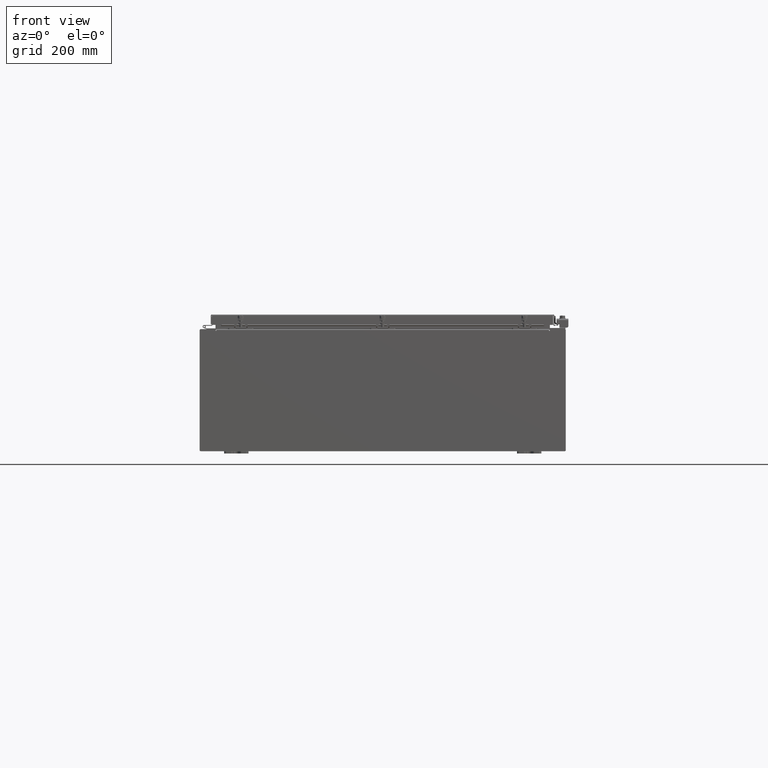
[diagram: clean part render]
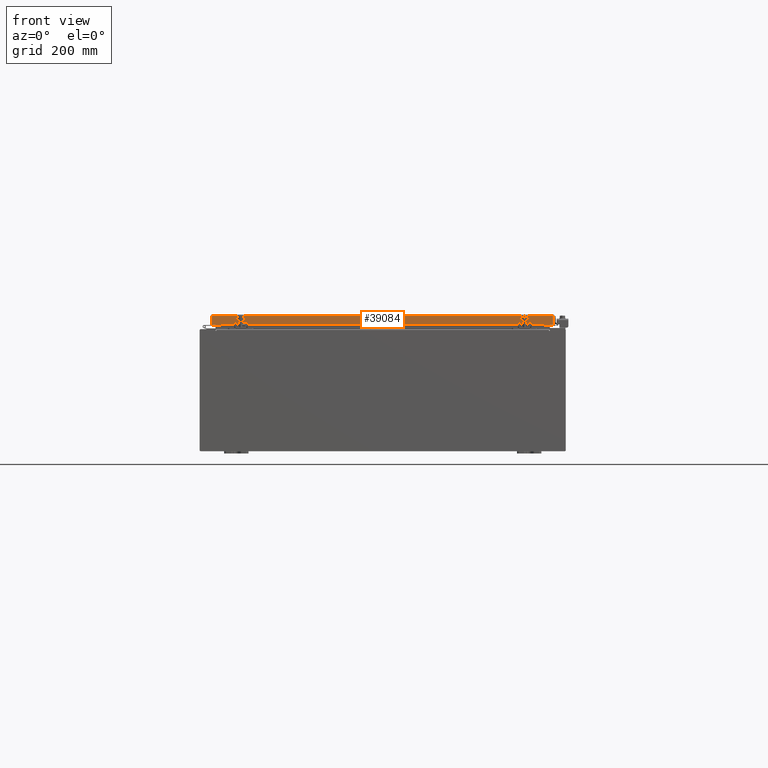
[diagram: same view with one face highlighted and labeled with its STEP entity id]
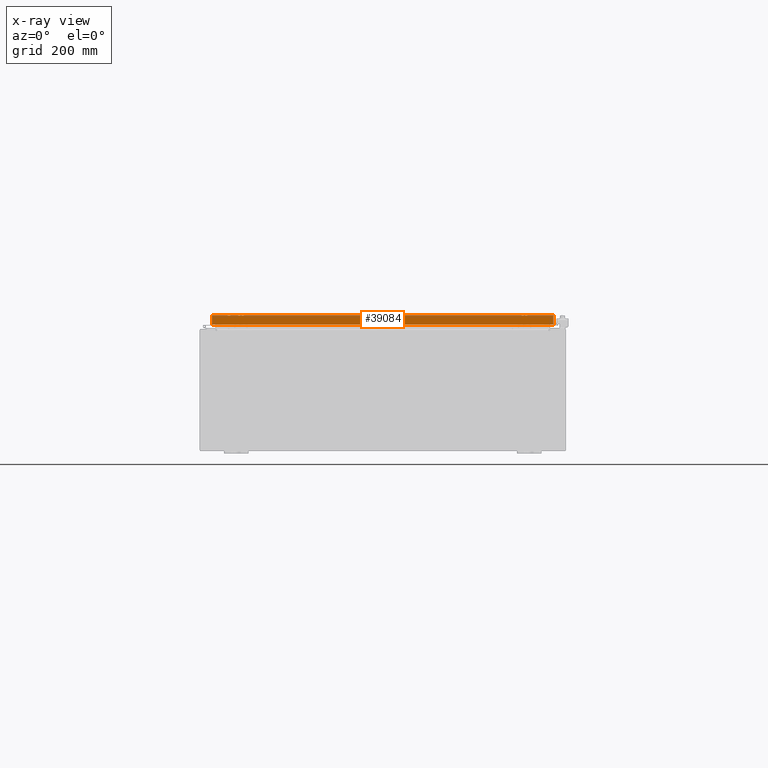
[diagram: x-ray of the same camera — body ghosted, the highlighted face saturated]
A machine part, front view. The second image highlights one B-rep face of the part: STEP entity #39084.
The next image is the same camera in x-ray: the body ghosted, the highlighted face saturated — about 0% of this face is hidden behind the body in this view.
In plain terms, the highlighted planar face has unit normal (-0, 1, -0).
Its self-contained STEP definition (entity closure, byte-faithful):
#476 = EDGE_CURVE ( 'NONE', #6163, #38441, #7977, .T. ) ;
#991 = CARTESIAN_POINT ( 'NONE',  ( 13.23915786437626400, -23.09400000000000500, -0.8500000000000040900 ) ) ;
#2006 = VERTEX_POINT ( 'NONE', #5179 ) ;
#2104 = LINE ( 'NONE', #2371, #27854 ) ;
#2371 = CARTESIAN_POINT ( 'NONE',  ( 14.07799999999999800, -23.09400000000000100, -0.08769999999999547600 ) ) ;
#3301 = VECTOR ( 'NONE', #16805, 39.37007874015748100 ) ;
#3576 = VECTOR ( 'NONE', #8968, 39.37007874015748100 ) ;
#5179 = CARTESIAN_POINT ( 'NONE',  ( 13.23915786437626000, -23.09400000000000500, -0.8500000000000040900 ) ) ;
#5907 = CARTESIAN_POINT ( 'NONE',  ( -13.98915786437626500, -23.09400000000000100, -0.08769999999999547600 ) ) ;
#6163 = VERTEX_POINT ( 'NONE', #8332 ) ;
#7954 = EDGE_CURVE ( 'NONE', #38441, #2006, #29642, .T. ) ;
#7977 = LINE ( 'NONE', #36086, #13015 ) ;
#8332 = CARTESIAN_POINT ( 'NONE',  ( 13.98915786437626500, -23.09400000000000100, -0.08769999999999549000 ) ) ;
#8417 = AXIS2_PLACEMENT_3D ( 'NONE', #33114, #37134, #12808 ) ;
#8631 = CARTESIAN_POINT ( 'NONE',  ( 14.07799999999999800, -23.09400000000000500, -0.8499999999999996400 ) ) ;
#8652 = ORIENTED_EDGE ( 'NONE', *, *, #26397, .F. ) ;
#8721 = EDGE_CURVE ( 'NONE', #23882, #6163, #2104, .T. ) ;
#8793 = DIRECTION ( 'NONE',  ( -0.0000000000000000000, -5.637761885544720300E-015, -1.000000000000000000 ) ) ;
#8968 = DIRECTION ( 'NONE',  ( 0.0000000000000000000, -5.637761885544720300E-015, -1.000000000000000000 ) ) ;
#12364 = VERTEX_POINT ( 'NONE', #14879 ) ;
#12808 = DIRECTION ( 'NONE',  ( 0.0000000000000000000, 5.637761885544720300E-015, 1.000000000000000000 ) ) ;
#13015 = VECTOR ( 'NONE', #8793, 39.37007874015748100 ) ;
#14491 = LINE ( 'NONE', #37368, #3576 ) ;
#14879 = CARTESIAN_POINT ( 'NONE',  ( -13.98915786437626500, -23.09400000000000500, -0.8499999999999963100 ) ) ;
#16805 = DIRECTION ( 'NONE',  ( -1.000000000000000000, 8.758115402030108600E-047, 1.212817869044015600E-016 ) ) ;
#21207 = ORIENTED_EDGE ( 'NONE', *, *, #8721, .F. ) ;
#21631 = ORIENTED_EDGE ( 'NONE', *, *, #7954, .F. ) ;
#23882 = VERTEX_POINT ( 'NONE', #5907 ) ;
#26397 = EDGE_CURVE ( 'NONE', #2006, #47846, #33624, .T. ) ;
#27440 = CARTESIAN_POINT ( 'NONE',  ( 14.07799999999999800, -23.09400000000000500, -0.8499999999999996400 ) ) ;
#27581 = DIRECTION ( 'NONE',  ( -1.000000000000000000, 8.758115402030108600E-047, 1.212817869044015600E-016 ) ) ;
#27854 = VECTOR ( 'NONE', #30937, 39.37007874015748100 ) ;
#29091 = PLANE ( 'NONE',  #8417 ) ;
#29642 = LINE ( 'NONE', #27440, #32873 ) ;
#30937 = DIRECTION ( 'NONE',  ( 1.000000000000000000, 6.837578356203919300E-031, -3.837486554107332000E-045 ) ) ;
#31075 = DIRECTION ( 'NONE',  ( -1.000000000000000000, 0.0000000000000000000, 0.0000000000000000000 ) ) ;
#32873 = VECTOR ( 'NONE', #27581, 39.37007874015748100 ) ;
#33114 = CARTESIAN_POINT ( 'NONE',  ( 1.579070345581732800E-029, -23.09400000000000100, 1.304592866407813600E-013 ) ) ;
#33624 = LINE ( 'NONE', #991, #43013 ) ;
#36086 = CARTESIAN_POINT ( 'NONE',  ( 13.98915786437626500, -23.09400000000000100, -0.07469999999999958600 ) ) ;
#37046 = ORIENTED_EDGE ( 'NONE', *, *, #41269, .F. ) ;
#37134 = DIRECTION ( 'NONE',  ( -6.837578356203917600E-031, 1.000000000000000000, -5.637761885544720300E-015 ) ) ;
#37368 = CARTESIAN_POINT ( 'NONE',  ( -13.98915786437626700, -23.09400000000000100, 1.304592866407813600E-013 ) ) ;
#37817 = ORIENTED_EDGE ( 'NONE', *, *, #476, .F. ) ;
#38441 = VERTEX_POINT ( 'NONE', #40328 ) ;
#39084 = ADVANCED_FACE ( 'NONE', ( #48908 ), #29091, .F. ) ;
#40328 = CARTESIAN_POINT ( 'NONE',  ( 13.98915786437626500, -23.09400000000000500, -0.8499999999999996400 ) ) ;
#41269 = EDGE_CURVE ( 'NONE', #47846, #12364, #46559, .T. ) ;
#43013 = VECTOR ( 'NONE', #31075, 39.37007874015748100 ) ;
#46044 = CARTESIAN_POINT ( 'NONE',  ( -13.23915786437626400, -23.09400000000000500, -0.8500000000000040900 ) ) ;
#46559 = LINE ( 'NONE', #8631, #3301 ) ;
#47846 = VERTEX_POINT ( 'NONE', #46044 ) ;
#48607 = EDGE_LOOP ( 'NONE', ( #21207, #50831, #37046, #8652, #21631, #37817 ) ) ;
#48908 = FACE_OUTER_BOUND ( 'NONE', #48607, .T. ) ;
#50831 = ORIENTED_EDGE ( 'NONE', *, *, #52507, .T. ) ;
#52507 = EDGE_CURVE ( 'NONE', #23882, #12364, #14491, .T. ) ;